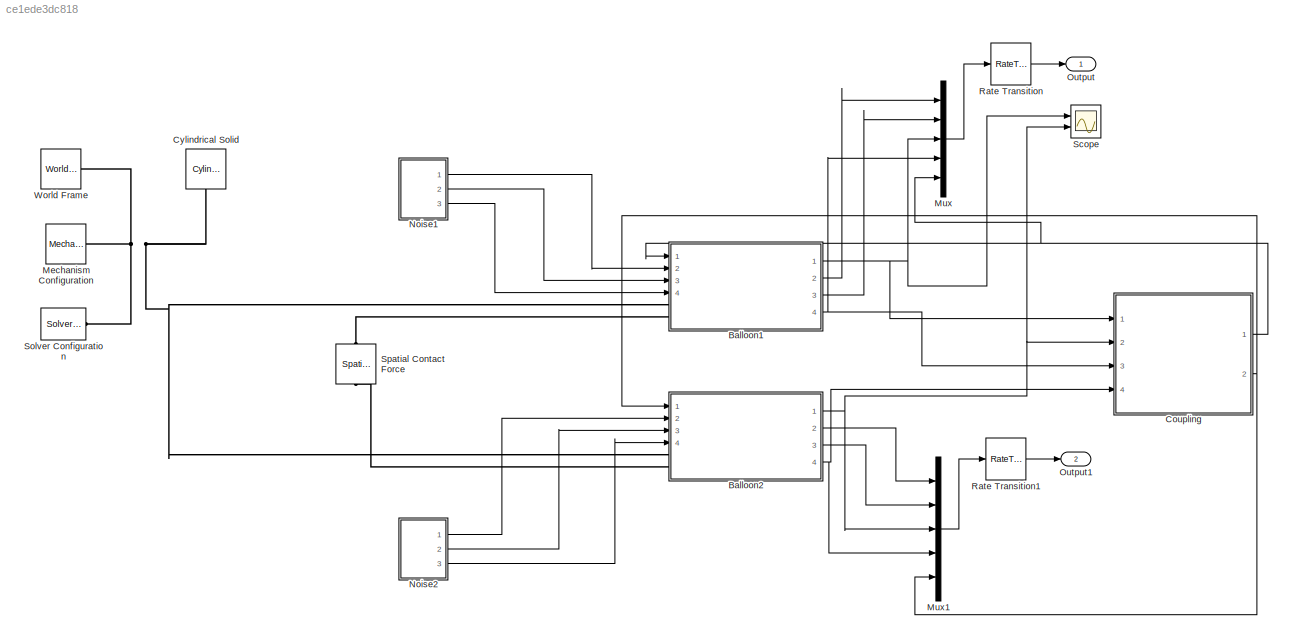
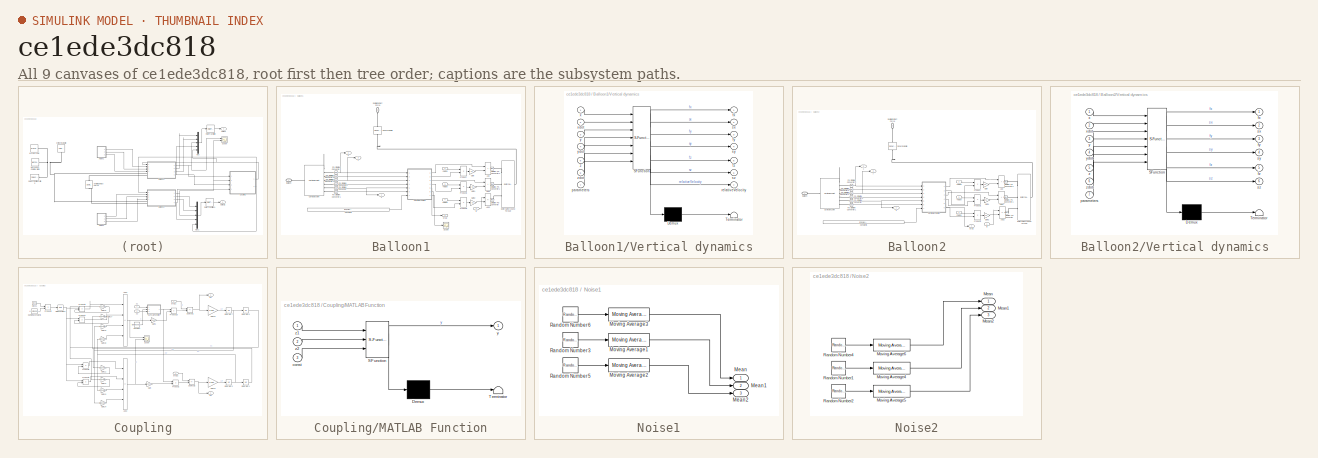
[diagram: thumbnail index - all 9 canvases of the model, root first then tree order]
MODEL slx_ce1ede3dc818
KIND model
CONFIG AbsTol = auto
CONFIG EnableMultiTasking = off
CONFIG FixedStep = auto
CONFIG InitFcn = seed1 = randi(100000);\nseed2 = randi(200000);
CONFIG MaxStep = auto
CONFIG MinStep = auto
CONFIG RelTol = 1e-3
CONFIG SampleTimeConstraint = Unconstrained
CONFIG SolverName = ode45
CONFIG StartTime = 0.0
CONFIG StopTime = 60*5
WORKSPACE source: mxarray member
WORKSPACE dCoupling = 10
WORKSPACE kCoupling = 10
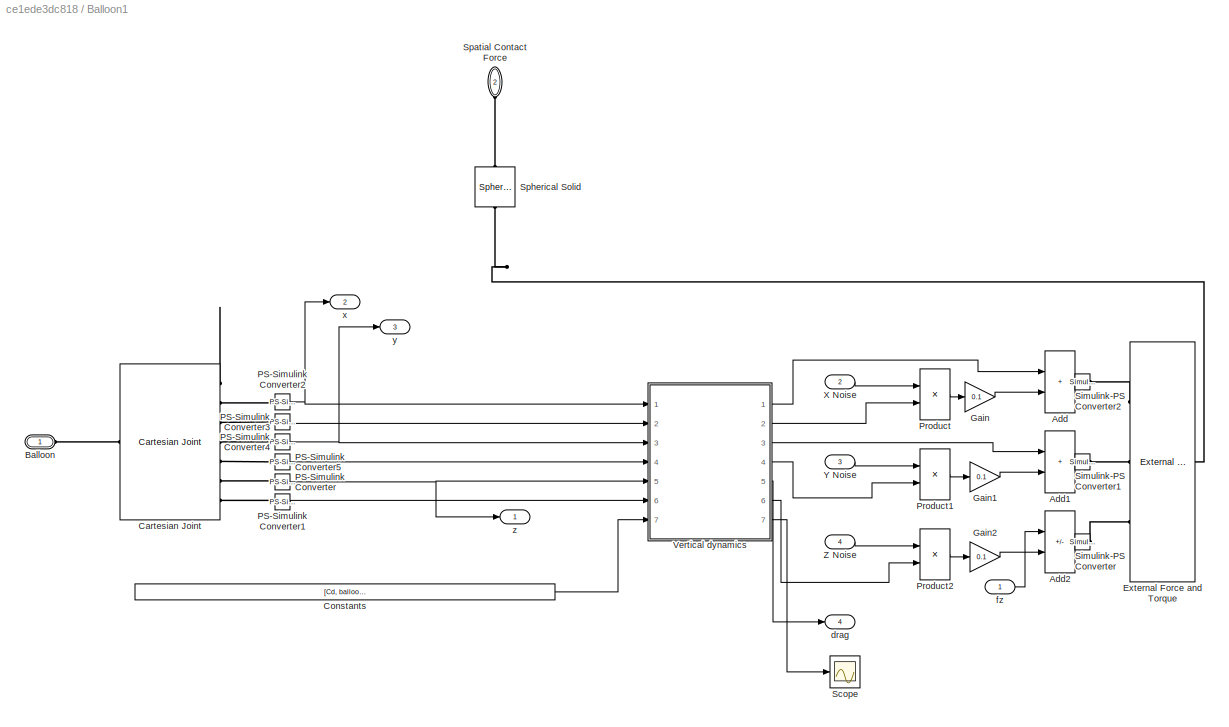
BLOCK [SubSystem] Balloon1
  Ports = [4, 4, 0, 0, 0, 2]
  RequestExecContextInheritance = off
BLOCK [Sum] Balloon1/Add
  IconShape = rectangular
  Ports = [2, 1]
BLOCK [Sum] Balloon1/Add1
  IconShape = rectangular
  Ports = [2, 1]
BLOCK [Sum] Balloon1/Add2
  IconShape = rectangular
  Inputs = -+
  Ports = [2, 1]
BLOCK [PMIOPort] Balloon1/Balloon
  Side = Left
BLOCK [Reference] Balloon1/Cartesian Joint  REF=sm_lib/Joints/Cartesian
Joint
  Ports = [0, 0, 0, 0, 0, 1, 7]
  SourceBlock = sm_lib/Joints/Cartesian\nJoint
  SourceProductBaseCode = MS
  SourceType = Cartesian\nJoint
BLOCK [Constant] Balloon1/Constants
  Value = [Cd, balloonRadius, rn, theta V0,normalScaling]
BLOCK [Reference] Balloon1/External Force and Torque  REF=sm_lib/Forces and
Torques/External Force
and Torque
  Ports = [0, 0, 0, 0, 0, 3, 1]
  SourceBlock = sm_lib/Forces and\nTorques/External Force\nand Torque
  SourceProductBaseCode = MS
  SourceType = External Force\nand Torque
BLOCK [Gain] Balloon1/Gain
  Gain = 0.1
BLOCK [Gain] Balloon1/Gain1
  Gain = 0.1
BLOCK [Gain] Balloon1/Gain2
  Gain = 0.1
BLOCK [Reference] Balloon1/PS-Simulink Converter  REF=nesl_utility/PS-Simulink
Converter
  Ports = [0, 1, 0, 0, 0, 1]
  SourceBlock = nesl_utility/PS-Simulink\nConverter
  SourceProductBaseCode = SS
  SourceType = PS-Simulink\nConverter
BLOCK [Reference] Balloon1/PS-Simulink Converter1  REF=nesl_utility/PS-Simulink
Converter
  Ports = [0, 1, 0, 0, 0, 1]
  SourceBlock = nesl_utility/PS-Simulink\nConverter
  SourceProductBaseCode = SS
  SourceType = PS-Simulink\nConverter
BLOCK [Reference] Balloon1/PS-Simulink Converter2  REF=nesl_utility/PS-Simulink
Converter
  Ports = [0, 1, 0, 0, 0, 1]
  SourceBlock = nesl_utility/PS-Simulink\nConverter
  SourceProductBaseCode = SS
  SourceType = PS-Simulink\nConverter
BLOCK [Reference] Balloon1/PS-Simulink Converter3  REF=nesl_utility/PS-Simulink
Converter
  Ports = [0, 1, 0, 0, 0, 1]
  SourceBlock = nesl_utility/PS-Simulink\nConverter
  SourceProductBaseCode = SS
  SourceType = PS-Simulink\nConverter
BLOCK [Reference] Balloon1/PS-Simulink Converter4  REF=nesl_utility/PS-Simulink
Converter
  Ports = [0, 1, 0, 0, 0, 1]
  SourceBlock = nesl_utility/PS-Simulink\nConverter
  SourceProductBaseCode = SS
  SourceType = PS-Simulink\nConverter
BLOCK [Reference] Balloon1/PS-Simulink Converter5  REF=nesl_utility/PS-Simulink
Converter
  Ports = [0, 1, 0, 0, 0, 1]
  SourceBlock = nesl_utility/PS-Simulink\nConverter
  SourceProductBaseCode = SS
  SourceType = PS-Simulink\nConverter
BLOCK [Product] Balloon1/Product
  Ports = [2, 1]
BLOCK [Product] Balloon1/Product1
  Ports = [2, 1]
BLOCK [Product] Balloon1/Product2
  Ports = [2, 1]
BLOCK [Scope] Balloon1/Scope
  Floating = off
  NumInputPorts = 1
  Ports = [1]
  ScopeSpecificationString = Simulink.scopes.TimeScopeBlockCfg('CurrentConfiguration', extmgr.ConfigurationSet(extmgr.Configuration('Core','General UI',true),extmgr.Configuration('Core','Source UI',true),extmgr.Configuration('Sources','WiredSimulink',true,'DataLoggingLimitDataPoints',true,'DataLoggingSaveFormat','Array','DataLoggingDecimation','1','DataLoggingVariableName','ScopeData1'),extmgr.Configuration('Visuals','Time Do...<+1662ch>
BLOCK [Reference] Balloon1/Simulink-PS Converter  REF=nesl_utility/Simulink-PS
Converter
  Ports = [1, 0, 0, 0, 0, 0, 1]
  SourceBlock = nesl_utility/Simulink-PS\nConverter
  SourceProductBaseCode = SS
  SourceType = Simulink-PS\nConverter
BLOCK [Reference] Balloon1/Simulink-PS Converter1  REF=nesl_utility/Simulink-PS
Converter
  Ports = [1, 0, 0, 0, 0, 0, 1]
  SourceBlock = nesl_utility/Simulink-PS\nConverter
  SourceProductBaseCode = SS
  SourceType = Simulink-PS\nConverter
BLOCK [Reference] Balloon1/Simulink-PS Converter2  REF=nesl_utility/Simulink-PS
Converter
  Ports = [1, 0, 0, 0, 0, 0, 1]
  SourceBlock = nesl_utility/Simulink-PS\nConverter
  SourceProductBaseCode = SS
  SourceType = Simulink-PS\nConverter
BLOCK [PMIOPort] Balloon1/Spatial Contact Force
  NameLocation = left
  Port = 2
  Side = Left
BLOCK [Reference] Balloon1/Spherical Solid  REF=sm_lib/Body Elements/Spherical Solid
  NameLocation = left
  Ports = [0, 0, 0, 0, 0, 1, 1]
  SourceBlock = sm_lib/Body Elements/Spherical Solid
  SourceProductBaseCode = MS
  SourceType = Spherical Solid
BLOCK [SubSystem] Balloon1/Vertical dynamics
  ErrorFcn = Stateflow.Translate.translate
  PermitHierarchicalResolution = ExplicitOnly
  Ports = [7, 7]
  RequestExecContextInheritance = off
  SFBlockType = MATLAB Function
  TreatAsAtomicUnit = on
BLOCK [Demux] Balloon1/Vertical dynamics/ Demux 
  Outputs = 1
  Ports = [1, 1]
BLOCK [S-Function] Balloon1/Vertical dynamics/ SFunction 
  EnableBusSupport = on
  FunctionName = sf_sfun
  PortCounts = [7 8]
  Ports = [7, 8]
  SFcnIsStateOwnerBlock = off
  SFunctionDeploymentMode = off
  Tag = Stateflow S-Function 3
BLOCK [Terminator] Balloon1/Vertical dynamics/ Terminator 
BLOCK [Outport] Balloon1/Vertical dynamics/fx
BLOCK [Outport] Balloon1/Vertical dynamics/fy
  Port = 3
BLOCK [Outport] Balloon1/Vertical dynamics/fz
  Port = 5
BLOCK [Inport] Balloon1/Vertical dynamics/parameters
  Port = 7
BLOCK [Outport] Balloon1/Vertical dynamics/relativeVelocity
  Port = 7
BLOCK [Outport] Balloon1/Vertical dynamics/sx
  Port = 2
BLOCK [Outport] Balloon1/Vertical dynamics/sy
  Port = 4
BLOCK [Outport] Balloon1/Vertical dynamics/sz
  Port = 6
BLOCK [Inport] Balloon1/Vertical dynamics/x
BLOCK [Inport] Balloon1/Vertical dynamics/xdot
  Port = 2
BLOCK [Inport] Balloon1/Vertical dynamics/y
  Port = 3
BLOCK [Inport] Balloon1/Vertical dynamics/ydot
  Port = 4
BLOCK [Inport] Balloon1/Vertical dynamics/z
  Port = 5
BLOCK [Inport] Balloon1/Vertical dynamics/zdot
  Port = 6
BLOCK [Inport] Balloon1/X Noise
  Port = 2
BLOCK [Inport] Balloon1/Y Noise
  Port = 3
BLOCK [Inport] Balloon1/Z Noise
  Port = 4
BLOCK [Outport] Balloon1/drag
  Port = 4
BLOCK [Inport] Balloon1/fz
BLOCK [Outport] Balloon1/x
  Port = 2
BLOCK [Outport] Balloon1/y
  Port = 3
BLOCK [Outport] Balloon1/z
BLOCK [SubSystem] Balloon2
  Ports = [4, 4, 0, 0, 0, 2]
  RequestExecContextInheritance = off
BLOCK [Sum] Balloon2/Add
  IconShape = rectangular
  Ports = [2, 1]
BLOCK [Sum] Balloon2/Add1
  IconShape = rectangular
  Ports = [2, 1]
BLOCK [Sum] Balloon2/Add2
  IconShape = rectangular
  Inputs = -+
  Ports = [2, 1]
BLOCK [PMIOPort] Balloon2/Balloon
  Side = Left
BLOCK [Reference] Balloon2/Cartesian Joint  REF=sm_lib/Joints/Cartesian
Joint
  Ports = [0, 0, 0, 0, 0, 1, 7]
  SourceBlock = sm_lib/Joints/Cartesian\nJoint
  SourceProductBaseCode = MS
  SourceType = Cartesian\nJoint
BLOCK [Constant] Balloon2/Constants
  Value = [Cd, balloonRadius, rn, theta V0,normalScaling]
BLOCK [Reference] Balloon2/External Force and Torque  REF=sm_lib/Forces and
Torques/External Force
and Torque
  Ports = [0, 0, 0, 0, 0, 3, 1]
  SourceBlock = sm_lib/Forces and\nTorques/External Force\nand Torque
  SourceProductBaseCode = MS
  SourceType = External Force\nand Torque
BLOCK [Gain] Balloon2/Gain
  Gain = 0.1
BLOCK [Gain] Balloon2/Gain1
  Gain = 0.1
BLOCK [Gain] Balloon2/Gain2
  Gain = 0.1
BLOCK [Reference] Balloon2/PS-Simulink Converter  REF=nesl_utility/PS-Simulink
Converter
  Ports = [0, 1, 0, 0, 0, 1]
  SourceBlock = nesl_utility/PS-Simulink\nConverter
  SourceProductBaseCode = SS
  SourceType = PS-Simulink\nConverter
BLOCK [Reference] Balloon2/PS-Simulink Converter1  REF=nesl_utility/PS-Simulink
Converter
  Ports = [0, 1, 0, 0, 0, 1]
  SourceBlock = nesl_utility/PS-Simulink\nConverter
  SourceProductBaseCode = SS
  SourceType = PS-Simulink\nConverter
BLOCK [Reference] Balloon2/PS-Simulink Converter2  REF=nesl_utility/PS-Simulink
Converter
  Ports = [0, 1, 0, 0, 0, 1]
  SourceBlock = nesl_utility/PS-Simulink\nConverter
  SourceProductBaseCode = SS
  SourceType = PS-Simulink\nConverter
BLOCK [Reference] Balloon2/PS-Simulink Converter3  REF=nesl_utility/PS-Simulink
Converter
  Ports = [0, 1, 0, 0, 0, 1]
  SourceBlock = nesl_utility/PS-Simulink\nConverter
  SourceProductBaseCode = SS
  SourceType = PS-Simulink\nConverter
BLOCK [Reference] Balloon2/PS-Simulink Converter4  REF=nesl_utility/PS-Simulink
Converter
  Ports = [0, 1, 0, 0, 0, 1]
  SourceBlock = nesl_utility/PS-Simulink\nConverter
  SourceProductBaseCode = SS
  SourceType = PS-Simulink\nConverter
BLOCK [Reference] Balloon2/PS-Simulink Converter5  REF=nesl_utility/PS-Simulink
Converter
  Ports = [0, 1, 0, 0, 0, 1]
  SourceBlock = nesl_utility/PS-Simulink\nConverter
  SourceProductBaseCode = SS
  SourceType = PS-Simulink\nConverter
BLOCK [Product] Balloon2/Product
  Ports = [2, 1]
BLOCK [Product] Balloon2/Product1
  Ports = [2, 1]
BLOCK [Product] Balloon2/Product2
  Ports = [2, 1]
BLOCK [Reference] Balloon2/Simulink-PS Converter  REF=nesl_utility/Simulink-PS
Converter
  Ports = [1, 0, 0, 0, 0, 0, 1]
  SourceBlock = nesl_utility/Simulink-PS\nConverter
  SourceProductBaseCode = SS
  SourceType = Simulink-PS\nConverter
BLOCK [Reference] Balloon2/Simulink-PS Converter1  REF=nesl_utility/Simulink-PS
Converter
  Ports = [1, 0, 0, 0, 0, 0, 1]
  SourceBlock = nesl_utility/Simulink-PS\nConverter
  SourceProductBaseCode = SS
  SourceType = Simulink-PS\nConverter
BLOCK [Reference] Balloon2/Simulink-PS Converter2  REF=nesl_utility/Simulink-PS
Converter
  Ports = [1, 0, 0, 0, 0, 0, 1]
  SourceBlock = nesl_utility/Simulink-PS\nConverter
  SourceProductBaseCode = SS
  SourceType = Simulink-PS\nConverter
BLOCK [PMIOPort] Balloon2/Spatial Contact Force
  NameLocation = left
  Port = 2
  Side = Left
BLOCK [Reference] Balloon2/Spherical Solid  REF=sm_lib/Body Elements/Spherical Solid
  NameLocation = left
  Ports = [0, 0, 0, 0, 0, 1, 1]
  SourceBlock = sm_lib/Body Elements/Spherical Solid
  SourceProductBaseCode = MS
  SourceType = Spherical Solid
BLOCK [SubSystem] Balloon2/Vertical dynamics
  ErrorFcn = Stateflow.Translate.translate
  PermitHierarchicalResolution = ExplicitOnly
  Ports = [7, 6]
  RequestExecContextInheritance = off
  SFBlockType = MATLAB Function
  TreatAsAtomicUnit = on
BLOCK [Demux] Balloon2/Vertical dynamics/ Demux 
  Outputs = 1
  Ports = [1, 1]
BLOCK [S-Function] Balloon2/Vertical dynamics/ SFunction 
  EnableBusSupport = on
  FunctionName = sf_sfun
  PortCounts = [7 7]
  Ports = [7, 7]
  SFcnIsStateOwnerBlock = off
  SFunctionDeploymentMode = off
  Tag = Stateflow S-Function 4
BLOCK [Terminator] Balloon2/Vertical dynamics/ Terminator 
BLOCK [Outport] Balloon2/Vertical dynamics/fx
BLOCK [Outport] Balloon2/Vertical dynamics/fy
  Port = 3
BLOCK [Outport] Balloon2/Vertical dynamics/fz
  Port = 5
BLOCK [Inport] Balloon2/Vertical dynamics/parameters
  Port = 7
BLOCK [Outport] Balloon2/Vertical dynamics/sx
  Port = 2
BLOCK [Outport] Balloon2/Vertical dynamics/sy
  Port = 4
BLOCK [Outport] Balloon2/Vertical dynamics/sz
  Port = 6
BLOCK [Inport] Balloon2/Vertical dynamics/x
BLOCK [Inport] Balloon2/Vertical dynamics/xdot
  Port = 2
BLOCK [Inport] Balloon2/Vertical dynamics/y
  Port = 3
BLOCK [Inport] Balloon2/Vertical dynamics/ydot
  Port = 4
BLOCK [Inport] Balloon2/Vertical dynamics/z
  Port = 5
BLOCK [Inport] Balloon2/Vertical dynamics/zdot
  Port = 6
BLOCK [Inport] Balloon2/X Noise
  Port = 2
BLOCK [Inport] Balloon2/Y Noise
  Port = 3
BLOCK [Inport] Balloon2/Z Noise
  Port = 4
BLOCK [Outport] Balloon2/drag
  NameLocation = top
  Port = 4
BLOCK [Inport] Balloon2/fz
BLOCK [Outport] Balloon2/x
  Port = 2
BLOCK [Outport] Balloon2/y
  Port = 3
BLOCK [Outport] Balloon2/z
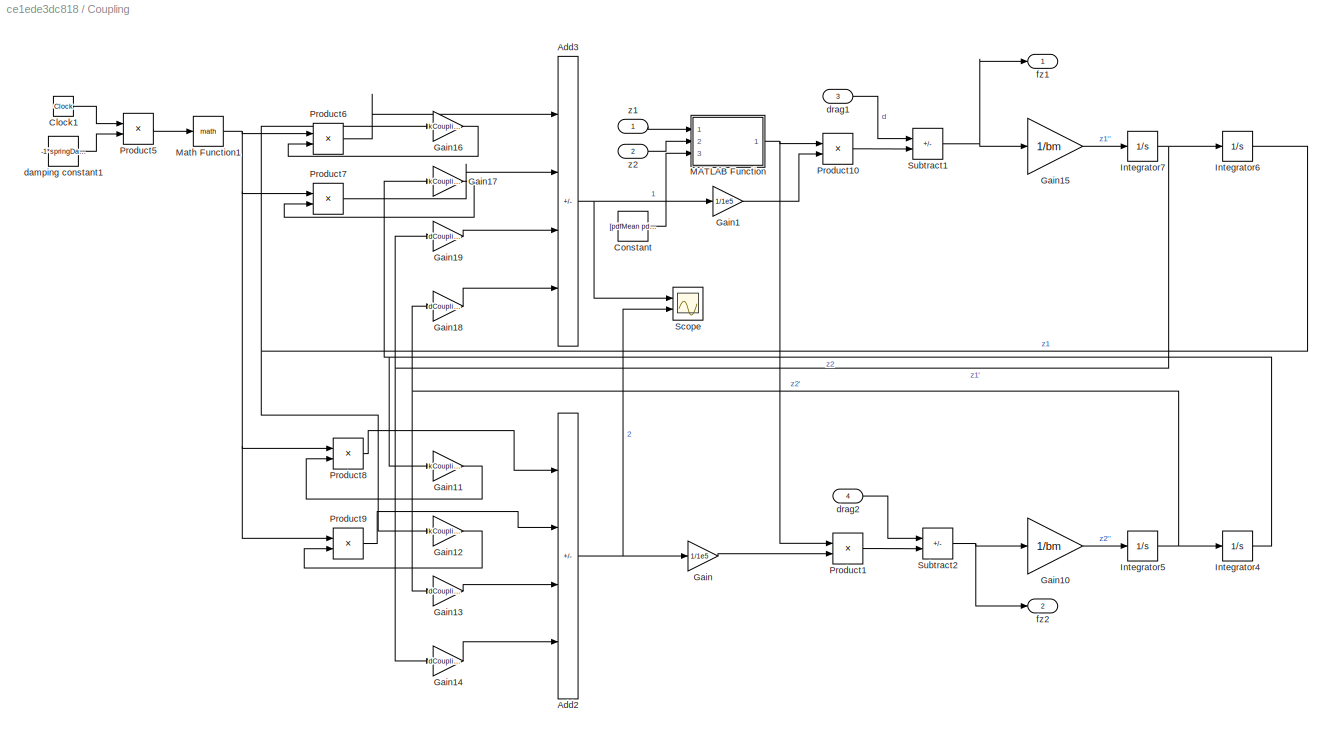
BLOCK [SubSystem] Coupling
  Ports = [4, 2]
  RequestExecContextInheritance = off
BLOCK [Sum] Coupling/Add2
  IconShape = rectangular
  Inputs = -+-+
  Ports = [4, 1]
BLOCK [Sum] Coupling/Add3
  IconShape = rectangular
  Inputs = -+-+
  Ports = [4, 1]
BLOCK [Clock] Coupling/Clock1
BLOCK [Constant] Coupling/Constant
  Value = [pdfMean pdfVar]
BLOCK [Gain] Coupling/Gain
  Gain = 1/1e5
BLOCK [Gain] Coupling/Gain1
  Gain = 1/1e5
BLOCK [Gain] Coupling/Gain10
  Gain = 1/bm
BLOCK [Gain] Coupling/Gain11
  Gain = kCoupling
BLOCK [Gain] Coupling/Gain12
  Gain = kCoupling
BLOCK [Gain] Coupling/Gain13
  Gain = dCoupling
BLOCK [Gain] Coupling/Gain14
  Gain = dCoupling
BLOCK [Gain] Coupling/Gain15
  Gain = 1/bm
BLOCK [Gain] Coupling/Gain16
  Gain = kCoupling
BLOCK [Gain] Coupling/Gain17
  Gain = kCoupling
BLOCK [Gain] Coupling/Gain18
  Gain = dCoupling
BLOCK [Gain] Coupling/Gain19
  Gain = dCoupling
BLOCK [Integrator] Coupling/Integrator4
  Ports = [1, 1]
BLOCK [Integrator] Coupling/Integrator5
  Ports = [1, 1]
BLOCK [Integrator] Coupling/Integrator6
  Ports = [1, 1]
BLOCK [Integrator] Coupling/Integrator7
  Ports = [1, 1]
BLOCK [SubSystem] Coupling/MATLAB Function
  ErrorFcn = Stateflow.Translate.translate
  PermitHierarchicalResolution = ExplicitOnly
  Ports = [3, 1]
  RequestExecContextInheritance = off
  SFBlockType = MATLAB Function
  TreatAsAtomicUnit = on
BLOCK [Demux] Coupling/MATLAB Function/ Demux 
  Outputs = 1
  Ports = [1, 1]
BLOCK [S-Function] Coupling/MATLAB Function/ SFunction 
  EnableBusSupport = on
  FunctionName = sf_sfun
  PortCounts = [3 2]
  Ports = [3, 2]
  SFcnIsStateOwnerBlock = off
  SFunctionDeploymentMode = off
  Tag = Stateflow S-Function 1
BLOCK [Terminator] Coupling/MATLAB Function/ Terminator 
BLOCK [Inport] Coupling/MATLAB Function/const
  Port = 3
BLOCK [Outport] Coupling/MATLAB Function/y
BLOCK [Inport] Coupling/MATLAB Function/z1
BLOCK [Inport] Coupling/MATLAB Function/z2
  Port = 2
BLOCK [Math] Coupling/Math Function1
  Ports = [1, 1]
BLOCK [Product] Coupling/Product1
  Ports = [2, 1]
BLOCK [Product] Coupling/Product10
  Ports = [2, 1]
BLOCK [Product] Coupling/Product5
  Ports = [2, 1]
BLOCK [Product] Coupling/Product6
  Ports = [2, 1]
BLOCK [Product] Coupling/Product7
  Ports = [2, 1]
BLOCK [Product] Coupling/Product8
  Ports = [2, 1]
BLOCK [Product] Coupling/Product9
  Ports = [2, 1]
BLOCK [Scope] Coupling/Scope
  Floating = off
  NumInputPorts = 2
  Ports = [2]
  ScopeSpecificationString = Simulink.scopes.TimeScopeBlockCfg('CurrentConfiguration', extmgr.ConfigurationSet(extmgr.Configuration('Core','General UI',true),extmgr.Configuration('Core','Source UI',true),extmgr.Configuration('Sources','WiredSimulink',true,'DataLoggingLimitDataPoints',true,'DataLoggingSaveFormat','Array','DataLoggingDecimation','1','DataLoggingVariableName','ScopeData2'),extmgr.Configuration('Visuals','Time Do...<+1712ch>
BLOCK [Sum] Coupling/Subtract1
  IconShape = rectangular
  Inputs = -+
  Ports = [2, 1]
BLOCK [Sum] Coupling/Subtract2
  IconShape = rectangular
  Inputs = -+
  Ports = [2, 1]
BLOCK [Constant] Coupling/damping constant1
  Value = -1*springDamping
BLOCK [Inport] Coupling/drag1
  Port = 3
BLOCK [Inport] Coupling/drag2
  Port = 4
BLOCK [Outport] Coupling/fz1
BLOCK [Outport] Coupling/fz2
  Port = 2
BLOCK [Inport] Coupling/z1
BLOCK [Inport] Coupling/z2
  Port = 2
BLOCK [Reference] Cylindrical Solid  REF=sm_lib/Body Elements/Cylindrical Solid
  NameLocation = left
  Ports = [0, 0, 0, 0, 0, 0, 1]
  SourceBlock = sm_lib/Body Elements/Cylindrical Solid
  SourceProductBaseCode = MS
  SourceType = Cylindrical Solid
BLOCK [Reference] Mechanism Configuration  REF=sm_lib/Utilities/Mechanism
Configuration
  Ports = [0, 0, 0, 0, 0, 0, 1]
  SourceBlock = sm_lib/Utilities/Mechanism\nConfiguration
  SourceProductBaseCode = MS
  SourceType = Mechanism\nConfiguration
BLOCK [Mux] Mux
  DisplayOption = bar
  Inputs = 5
  Ports = [5, 1]
BLOCK [Mux] Mux1
  DisplayOption = bar
  Inputs = 5
  Ports = [5, 1]
BLOCK [SubSystem] Noise1
  Ports = [0, 3]
  RequestExecContextInheritance = off
BLOCK [Outport] Noise1/ Mean
BLOCK [Outport] Noise1/ Mean1
  Port = 2
BLOCK [Outport] Noise1/ Mean2
  Port = 3
BLOCK [Reference] Noise1/Moving Average1  REF=eeGeneralControl/Moving Average
  Ports = [1, 1]
  SourceBlock = eeGeneralControl/Moving Average
  SourceProductBaseCode = PS
  SourceType = Moving Average
BLOCK [Reference] Noise1/Moving Average2  REF=eeGeneralControl/Moving Average
  Ports = [1, 1]
  SourceBlock = eeGeneralControl/Moving Average
  SourceProductBaseCode = PS
  SourceType = Moving Average
BLOCK [Reference] Noise1/Moving Average3  REF=eeGeneralControl/Moving Average
  Ports = [1, 1]
  SourceBlock = eeGeneralControl/Moving Average
  SourceProductBaseCode = PS
  SourceType = Moving Average
BLOCK [RandomNumber] Noise1/Random Number3
  SampleTime = nS
  Seed = seedY
  Variance = nH*10
BLOCK [RandomNumber] Noise1/Random Number5
  SampleTime = nS
  Seed = seedZ
  Variance = nV
BLOCK [RandomNumber] Noise1/Random Number6
  SampleTime = nS
  Seed = seedX
  Variance = nH*10
BLOCK [SubSystem] Noise2
  Ports = [0, 3]
  RequestExecContextInheritance = off
BLOCK [Outport] Noise2/ Mean
BLOCK [Outport] Noise2/ Mean1
  Port = 2
BLOCK [Outport] Noise2/ Mean2
  Port = 3
BLOCK [Reference] Noise2/Moving Average4  REF=eeGeneralControl/Moving Average
  Ports = [1, 1]
  SourceBlock = eeGeneralControl/Moving Average
  SourceProductBaseCode = PS
  SourceType = Moving Average
BLOCK [Reference] Noise2/Moving Average5  REF=eeGeneralControl/Moving Average
  Ports = [1, 1]
  SourceBlock = eeGeneralControl/Moving Average
  SourceProductBaseCode = PS
  SourceType = Moving Average
BLOCK [Reference] Noise2/Moving Average6  REF=eeGeneralControl/Moving Average
  Ports = [1, 1]
  SourceBlock = eeGeneralControl/Moving Average
  SourceProductBaseCode = PS
  SourceType = Moving Average
BLOCK [RandomNumber] Noise2/Random Number1
  SampleTime = nS
  Seed = seedY1
  Variance = nH
BLOCK [RandomNumber] Noise2/Random Number2
  SampleTime = nS
  Seed = seedZ1
  Variance = nV
BLOCK [RandomNumber] Noise2/Random Number4
  SampleTime = nS
  Seed = seedX1
  Variance = nH
BLOCK [Outport] Output
BLOCK [Outport] Output1
  Port = 2
BLOCK [RateTransition] Rate Transition
  OutPortSampleTime = 1/40
BLOCK [RateTransition] Rate Transition1
  OutPortSampleTime = 1/40
BLOCK [Scope] Scope
  Floating = off
  NumInputPorts = 2
  Ports = [2]
  ScopeSpecificationString = Simulink.scopes.TimeScopeBlockCfg('CurrentConfiguration', extmgr.ConfigurationSet(extmgr.Configuration('Core','General UI',true),extmgr.Configuration('Core','Source UI',true),extmgr.Configuration('Sources','WiredSimulink',true),extmgr.Configuration('Visuals','Time Domain',true,'SerializedDisplays',{struct('MinYLimReal','-0.06254','MaxYLimReal','0.5625','YLabelReal','','MinYLimMag','0.00000','MaxYL...<+1446ch>
BLOCK [Reference] Solver Configuration  REF=nesl_utility/Solver
Configuration
  Ports = [0, 0, 0, 0, 0, 0, 1]
  SourceBlock = nesl_utility/Solver\nConfiguration
  SourceProductBaseCode = SS
  SourceType = Solver\nConfiguration
BLOCK [Reference] Spatial Contact Force  REF=sm_lib/Forces and
Torques/Spatial
Contact Force
  NameLocation = left
  Ports = [0, 0, 0, 0, 0, 1, 1]
  SourceBlock = sm_lib/Forces and\nTorques/Spatial\nContact Force
  SourceProductBaseCode = MS
  SourceType = Spatial\nContact Force
BLOCK [Reference] World Frame  REF=sm_lib/Frames and
Transforms/World Frame
  Ports = [0, 0, 0, 0, 0, 0, 1]
  SourceBlock = sm_lib/Frames and\nTransforms/World Frame
  SourceProductBaseCode = MS
  SourceType = World Frame
LINE Balloon1/Add1:1 -> Balloon1/Simulink-PS Converter1:1
LINE Balloon1/Add2:1 -> Balloon1/Simulink-PS Converter:1
LINE Balloon1/Add:1 -> Balloon1/Simulink-PS Converter2:1
LINE Balloon1/Constants:1 -> Balloon1/Vertical dynamics:7
LINE Balloon1/Gain1:1 -> Balloon1/Add1:2
LINE Balloon1/Gain2:1 -> Balloon1/Add2:2
LINE Balloon1/Gain:1 -> Balloon1/Add:2
LINE Balloon1/PS-Simulink Converter1:1 -> Balloon1/Vertical dynamics:6
NET Balloon1/PS-Simulink Converter2:1 -> Balloon1/Vertical dynamics:1, Balloon1/x:1
LINE Balloon1/PS-Simulink Converter3:1 -> Balloon1/Vertical dynamics:2
NET Balloon1/PS-Simulink Converter4:1 -> Balloon1/Vertical dynamics:3, Balloon1/y:1
LINE Balloon1/PS-Simulink Converter5:1 -> Balloon1/Vertical dynamics:4
NET Balloon1/PS-Simulink Converter:1 -> Balloon1/Vertical dynamics:5, Balloon1/z:1
LINE Balloon1/Product1:1 -> Balloon1/Gain1:1
LINE Balloon1/Product2:1 -> Balloon1/Gain2:1
LINE Balloon1/Product:1 -> Balloon1/Gain:1
LINE Balloon1/Vertical dynamics:1 -> Balloon1/Add:1
LINE Balloon1/Vertical dynamics:2 -> Balloon1/Product:2
LINE Balloon1/Vertical dynamics:3 -> Balloon1/Add1:1
LINE Balloon1/Vertical dynamics:4 -> Balloon1/Product1:2
LINE Balloon1/Vertical dynamics:5 -> Balloon1/drag:1
LINE Balloon1/Vertical dynamics:6 -> Balloon1/Product2:2
LINE Balloon1/Vertical dynamics:7 -> Balloon1/Scope:1
LINE Balloon1/X Noise:1 -> Balloon1/Product:1
LINE Balloon1/Y Noise:1 -> Balloon1/Product1:1
LINE Balloon1/Z Noise:1 -> Balloon1/Product2:1
LINE Balloon1/fz:1 -> Balloon1/Add2:1
NET Balloon1:1 -> Coupling:1, Mux:3, Scope:1
LINE Balloon1:2 -> Mux:1
LINE Balloon1:3 -> Mux:2
NET Balloon1:4 -> Coupling:3, Mux:4
LINE Balloon2/Add1:1 -> Balloon2/Simulink-PS Converter1:1
LINE Balloon2/Add2:1 -> Balloon2/Simulink-PS Converter:1
LINE Balloon2/Add:1 -> Balloon2/Simulink-PS Converter2:1
LINE Balloon2/Constants:1 -> Balloon2/Vertical dynamics:7
LINE Balloon2/Gain1:1 -> Balloon2/Add1:2
LINE Balloon2/Gain2:1 -> Balloon2/Add2:2
LINE Balloon2/Gain:1 -> Balloon2/Add:2
LINE Balloon2/PS-Simulink Converter1:1 -> Balloon2/Vertical dynamics:6
NET Balloon2/PS-Simulink Converter2:1 -> Balloon2/Vertical dynamics:1, Balloon2/x:1
LINE Balloon2/PS-Simulink Converter3:1 -> Balloon2/Vertical dynamics:2
NET Balloon2/PS-Simulink Converter4:1 -> Balloon2/Vertical dynamics:3, Balloon2/y:1
LINE Balloon2/PS-Simulink Converter5:1 -> Balloon2/Vertical dynamics:4
NET Balloon2/PS-Simulink Converter:1 -> Balloon2/Vertical dynamics:5, Balloon2/z:1
LINE Balloon2/Product1:1 -> Balloon2/Gain1:1
LINE Balloon2/Product2:1 -> Balloon2/Gain2:1
LINE Balloon2/Product:1 -> Balloon2/Gain:1
LINE Balloon2/Vertical dynamics:1 -> Balloon2/Add:1
LINE Balloon2/Vertical dynamics:2 -> Balloon2/Product:2
LINE Balloon2/Vertical dynamics:3 -> Balloon2/Add1:1
LINE Balloon2/Vertical dynamics:4 -> Balloon2/Product1:2
LINE Balloon2/Vertical dynamics:5 -> Balloon2/drag:1
LINE Balloon2/Vertical dynamics:6 -> Balloon2/Product2:2
LINE Balloon2/X Noise:1 -> Balloon2/Product:1
LINE Balloon2/Y Noise:1 -> Balloon2/Product1:1
LINE Balloon2/Z Noise:1 -> Balloon2/Product2:1
LINE Balloon2/fz:1 -> Balloon2/Add2:1
NET Balloon2:1 -> Coupling:2, Mux1:3, Scope:2
LINE Balloon2:2 -> Mux1:1
LINE Balloon2:3 -> Mux1:2
NET Balloon2:4 -> Coupling:4, Mux1:4
NET Coupling/Add2:1 -> Coupling/Gain:1, Coupling/Scope:2
NET Coupling/Add3:1 -> Coupling/Gain1:1, Coupling/Scope:1
LINE Coupling/Clock1:1 -> Coupling/Product5:1
LINE Coupling/Constant:1 -> Coupling/MATLAB Function:3
LINE Coupling/Gain10:1 -> Coupling/Integrator5:1
LINE Coupling/Gain11:1 -> Coupling/Product8:2
LINE Coupling/Gain12:1 -> Coupling/Product9:2
LINE Coupling/Gain13:1 -> Coupling/Add2:3
LINE Coupling/Gain14:1 -> Coupling/Add2:4
LINE Coupling/Gain15:1 -> Coupling/Integrator7:1
LINE Coupling/Gain16:1 -> Coupling/Product6:2
LINE Coupling/Gain17:1 -> Coupling/Product7:2
LINE Coupling/Gain18:1 -> Coupling/Add3:4
LINE Coupling/Gain19:1 -> Coupling/Add3:3
LINE Coupling/Gain1:1 -> Coupling/Product10:2
LINE Coupling/Gain:1 -> Coupling/Product1:2
NET Coupling/Integrator4:1 -> Coupling/Gain11:1, Coupling/Gain17:1
NET Coupling/Integrator5:1 -> Coupling/Gain13:1, Coupling/Gain18:1, Coupling/Integrator4:1
NET Coupling/Integrator6:1 -> Coupling/Gain12:1, Coupling/Gain16:1
NET Coupling/Integrator7:1 -> Coupling/Gain14:1, Coupling/Gain19:1, Coupling/Integrator6:1
NET Coupling/MATLAB Function:1 -> Coupling/Product10:1, Coupling/Product1:1
NET Coupling/Math Function1:1 -> Coupling/Product6:1, Coupling/Product7:1, Coupling/Product8:1, Coupling/Product9:1
LINE Coupling/Product10:1 -> Coupling/Subtract1:2
LINE Coupling/Product1:1 -> Coupling/Subtract2:2
LINE Coupling/Product5:1 -> Coupling/Math Function1:1
LINE Coupling/Product6:1 -> Coupling/Add3:1
LINE Coupling/Product7:1 -> Coupling/Add3:2
LINE Coupling/Product8:1 -> Coupling/Add2:1
LINE Coupling/Product9:1 -> Coupling/Add2:2
NET Coupling/Subtract1:1 -> Coupling/Gain15:1, Coupling/fz1:1
NET Coupling/Subtract2:1 -> Coupling/Gain10:1, Coupling/fz2:1
LINE Coupling/damping constant1:1 -> Coupling/Product5:2
LINE Coupling/drag1:1 -> Coupling/Subtract1:1
LINE Coupling/drag2:1 -> Coupling/Subtract2:1
LINE Coupling/z1:1 -> Coupling/MATLAB Function:1
LINE Coupling/z2:1 -> Coupling/MATLAB Function:2
NET Coupling:1 -> Balloon1:1, Mux:5
NET Coupling:2 -> Balloon2:1, Mux1:5
LINE Mux1:1 -> Rate Transition1:1
LINE Mux:1 -> Rate Transition:1
LINE Noise1/Moving Average1:1 -> Noise1/ Mean1:1
LINE Noise1/Moving Average2:1 -> Noise1/ Mean2:1
LINE Noise1/Moving Average3:1 -> Noise1/ Mean:1
LINE Noise1/Random Number3:1 -> Noise1/Moving Average1:1
LINE Noise1/Random Number5:1 -> Noise1/Moving Average2:1
LINE Noise1/Random Number6:1 -> Noise1/Moving Average3:1
LINE Noise1:1 -> Balloon1:2
LINE Noise1:2 -> Balloon1:3
LINE Noise1:3 -> Balloon1:4
LINE Noise2/Moving Average4:1 -> Noise2/ Mean1:1
LINE Noise2/Moving Average5:1 -> Noise2/ Mean2:1
LINE Noise2/Moving Average6:1 -> Noise2/ Mean:1
LINE Noise2/Random Number1:1 -> Noise2/Moving Average4:1
LINE Noise2/Random Number2:1 -> Noise2/Moving Average5:1
LINE Noise2/Random Number4:1 -> Noise2/Moving Average6:1
LINE Noise2:1 -> Balloon2:2
LINE Noise2:2 -> Balloon2:3
LINE Noise2:3 -> Balloon2:4
LINE Rate Transition1:1 -> Output1:1
LINE Rate Transition:1 -> Output:1
PLINE Balloon1/Balloon:RConn1 -- Balloon1/Cartesian Joint:LConn1
PNET net1: Balloon1/Cartesian Joint:RConn1 -- Balloon1/External Force and Torque:RConn1 -- Balloon1/Spherical Solid:RConn1
PLINE Balloon1/Cartesian Joint:RConn2 -- Balloon1/PS-Simulink Converter2:LConn1
PLINE Balloon1/Cartesian Joint:RConn3 -- Balloon1/PS-Simulink Converter3:LConn1
PLINE Balloon1/Cartesian Joint:RConn4 -- Balloon1/PS-Simulink Converter4:LConn1
PLINE Balloon1/Cartesian Joint:RConn5 -- Balloon1/PS-Simulink Converter5:LConn1
PLINE Balloon1/Cartesian Joint:RConn6 -- Balloon1/PS-Simulink Converter:LConn1
PLINE Balloon1/Cartesian Joint:RConn7 -- Balloon1/PS-Simulink Converter1:LConn1
PLINE Balloon1/External Force and Torque:LConn1 -- Balloon1/Simulink-PS Converter2:RConn1
PLINE Balloon1/External Force and Torque:LConn2 -- Balloon1/Simulink-PS Converter1:RConn1
PLINE Balloon1/External Force and Torque:LConn3 -- Balloon1/Simulink-PS Converter:RConn1
PLINE Balloon1/Spatial Contact Force:RConn1 -- Balloon1/Spherical Solid:LConn1
PNET net2: Balloon1:LConn1 -- Balloon2:LConn1 -- Cylindrical Solid:RConn1 -- Mechanism Configuration:RConn1 -- Solver Configuration:RConn1 -- World Frame:RConn1
PLINE Balloon1:LConn2 -- Spatial Contact Force:LConn1
PLINE Balloon2/Balloon:RConn1 -- Balloon2/Cartesian Joint:LConn1
PNET net3: Balloon2/Cartesian Joint:RConn1 -- Balloon2/External Force and Torque:RConn1 -- Balloon2/Spherical Solid:RConn1
PLINE Balloon2/Cartesian Joint:RConn2 -- Balloon2/PS-Simulink Converter2:LConn1
PLINE Balloon2/Cartesian Joint:RConn3 -- Balloon2/PS-Simulink Converter3:LConn1
PLINE Balloon2/Cartesian Joint:RConn4 -- Balloon2/PS-Simulink Converter4:LConn1
PLINE Balloon2/Cartesian Joint:RConn5 -- Balloon2/PS-Simulink Converter5:LConn1
PLINE Balloon2/Cartesian Joint:RConn6 -- Balloon2/PS-Simulink Converter:LConn1
PLINE Balloon2/Cartesian Joint:RConn7 -- Balloon2/PS-Simulink Converter1:LConn1
PLINE Balloon2/External Force and Torque:LConn1 -- Balloon2/Simulink-PS Converter2:RConn1
PLINE Balloon2/External Force and Torque:LConn2 -- Balloon2/Simulink-PS Converter1:RConn1
PLINE Balloon2/External Force and Torque:LConn3 -- Balloon2/Simulink-PS Converter:RConn1
PLINE Balloon2/Spatial Contact Force:RConn1 -- Balloon2/Spherical Solid:LConn1
PLINE Balloon2:LConn2 -- Spatial Contact Force:RConn1
note: NET lines group one-source signal fan-out (src -> all destinations, sorted); 1:1 wires keep LINE; PNET lines group multi-terminal physical nets as a canonical sorted terminal list (undirected conserving connections); 2-terminal nets keep the pairwise PLINE form
CHART Coupling/MATLAB Function states=1 transitions=1
  STATE_LABEL 'eML_blk_kernel()'
  STATE_LABEL 'SCRIPT:\nfunction y  = fcn(z1, z2, const)\n\ncouplingMeanSf = const(1);\ncouplingVarSf = const(2);\n\nz = abs(z1-z2)-0.16;\ny = normpdf(z,couplingMeanSf,couplingVarSf);\n\nend\n'
CHART Balloon1/Vertical dynamics states=1 transitions=1
  STATE_LABEL 'eML_blk_kernel()'
  STATE_LABEL 'SCRIPT:\nfunction [fx,sx,fy,sy,fz,sz,relativeVelocity] = fcn(x,xdot,y,ydot,z,zdot,parameters)\n\nCd = parameters(1);\nrb = parameters(2);\nrn = parameters(3);\ntheta = deg2rad(parameters(4)); \nV0 = parameters(5); \nnormalScaling = parameters(6); \n\n%% Vertical forces\n\n%Horizontal plane displacement\n[rotation, rDisplacement] = cart2pol(x,y);\n\n%flow radius\nrFlow = rn+z*tan(theta);\n\n%Peak flow velocity\nmeanF...<+1253ch>'
CHART Balloon2/Vertical dynamics states=1 transitions=1
  STATE_LABEL 'eML_blk_kernel()'
  STATE_LABEL 'SCRIPT:\n\nfunction [fx,sx,fy,sy,fz,sz] = fcn(x,xdot,y,ydot,z,zdot,parameters)\n\nCd = parameters(1);\nrb = parameters(2);\nrn = parameters(3);\ntheta = deg2rad(parameters(4)); \nV0 = parameters(5); \nnormalScaling = parameters(6); \n\n%% Vertical forces\n\n%Horizontal plane displacement\n[rotation, rDisplacement] = cart2pol(x,y);\n\n%flow radius\nrFlow = rn+z*tan(theta);\n\n%Peak flow velocity\nmeanFlowVelocity = V0...<+1236ch>'
CHART  states=0 transitions=0
CHART  states=0 transitions=0
CHART  states=0 transitions=0
